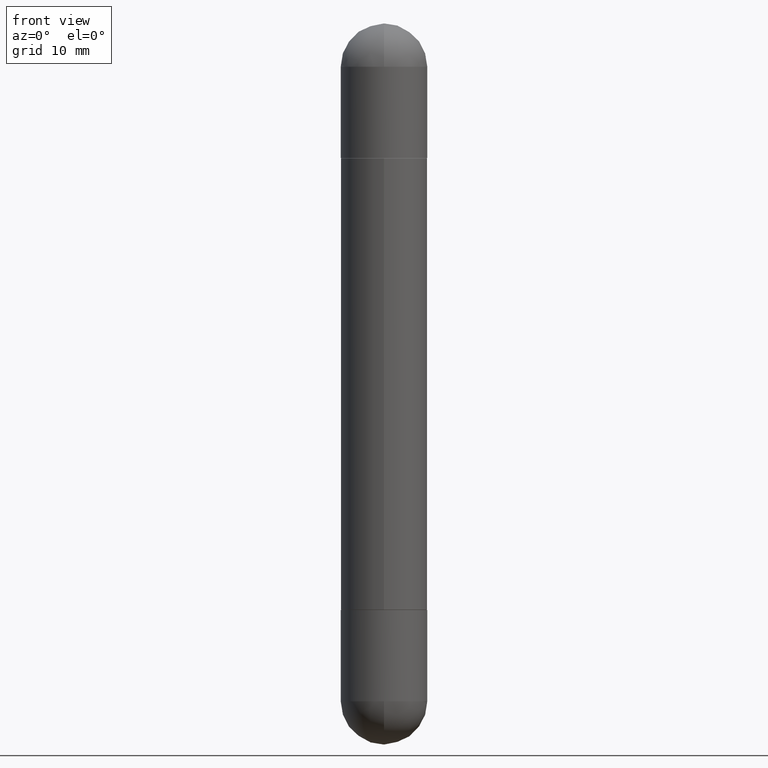
[diagram: clean part render]
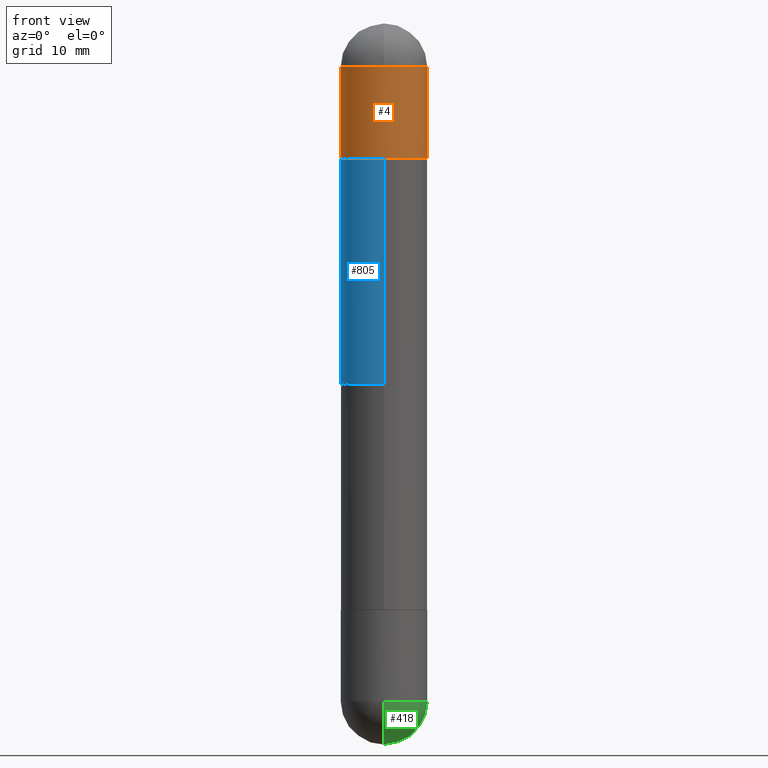
[diagram: same view with three faces highlighted in distinct colors, each labeled with its STEP entity id]
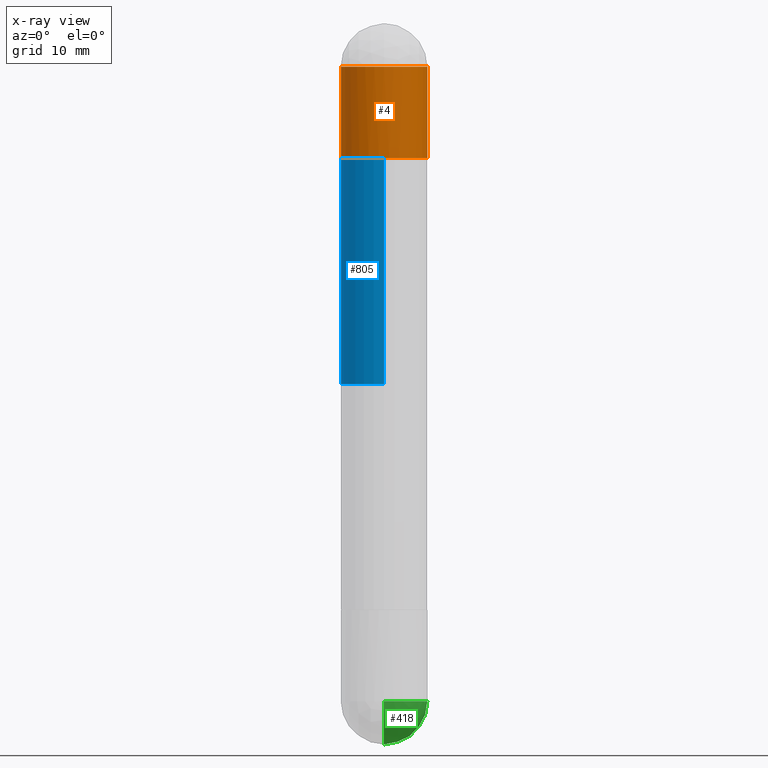
[diagram: x-ray of the same camera — body ghosted, the three highlighted faces saturated]
A machine part, front view with three faces highlighted in distinct colors.
The next image is the same camera in x-ray (body ghosted, the three faces saturated) — at least one of them is partly hidden behind the body in this view.
Their STEP definitions:

[orange] entity #4 — the highlighted cylindrical surface (partial cylindrical patch) has radius 4.4996 mm, axis along (-0, 0, -1).
#4 = ADVANCED_FACE ( 'NONE', ( #311 ), #259, .T. ) ;
#12 = DIRECTION ( 'NONE',  ( -2.445468806185136877E-29, 3.491481338843145188E-15, -1.000000000000000000 ) ) ;
#14 = CARTESIAN_POINT ( 'NONE',  ( 6.787765491887772680E-29, -9.691130178159974964E-15, -0.1771500000000000574 ) ) ;
#33 = CARTESIAN_POINT ( 'NONE',  ( 0.1771500000000000019, -9.622173421717819657E-15, -0.5512000000000001343 ) ) ;
#45 = CARTESIAN_POINT ( 'NONE',  ( -1.215337220305161228E-15, -0.1771500000000100772, -0.1771500000000006680 ) ) ;
#52 = AXIS2_PLACEMENT_3D ( 'NONE', #617, #676, #435 ) ;
#68 = DIRECTION ( 'NONE',  ( -2.445468806185136597E-29, 3.491481338843145583E-15, -1.000000000000000000 ) ) ;
#94 = ORIENTED_EDGE ( 'NONE', *, *, #273, .F. ) ;
#108 = ORIENTED_EDGE ( 'NONE', *, *, #496, .T. ) ;
#130 = EDGE_CURVE ( 'NONE', #489, #147, #139, .T. ) ;
#139 = CIRCLE ( 'NONE', #305, 0.1771500000000000019 ) ;
#147 = VERTEX_POINT ( 'NONE', #592 ) ;
#223 = LINE ( 'NONE', #391, #373 ) ;
#229 = EDGE_CURVE ( 'NONE', #797, #489, #269, .T. ) ;
#238 = VERTEX_POINT ( 'NONE', #533 ) ;
#247 = EDGE_CURVE ( 'NONE', #797, #238, #223, .T. ) ;
#259 = CYLINDRICAL_SURFACE ( 'NONE', #802, 0.1771500000000000019 ) ;
#266 = CARTESIAN_POINT ( 'NONE',  ( 6.787765491887772680E-29, -9.691130178159974964E-15, -0.1771500000000000574 ) ) ;
#269 = CIRCLE ( 'NONE', #414, 0.1771500000000000019 ) ;
#273 = EDGE_CURVE ( 'NONE', #147, #796, #590, .T. ) ;
#305 = AXIS2_PLACEMENT_3D ( 'NONE', #266, #458, #703 ) ;
#311 = FACE_OUTER_BOUND ( 'NONE', #702, .T. ) ;
#348 = CARTESIAN_POINT ( 'NONE',  ( -0.1771500000000000019, -7.822798660457609805E-15, -0.1771500000000000574 ) ) ;
#373 = VECTOR ( 'NONE', #12, 39.37007874015748143 ) ;
#391 = CARTESIAN_POINT ( 'NONE',  ( -0.1771500000000000019, 1.215337220305226901E-15, -2.952799999999999869 ) ) ;
#406 = DIRECTION ( 'NONE',  ( 2.445468806185136597E-29, -3.491481338843145583E-15, 1.000000000000000000 ) ) ;
#414 = AXIS2_PLACEMENT_3D ( 'NONE', #14, #406, #658 ) ;
#435 = DIRECTION ( 'NONE',  ( 1.000000000000000000, -6.982962677686266711E-15, 0.000000000000000000 ) ) ;
#449 = ORIENTED_EDGE ( 'NONE', *, *, #130, .F. ) ;
#457 = DIRECTION ( 'NONE',  ( -2.445468806185136877E-29, 3.491481338843145188E-15, -1.000000000000000000 ) ) ;
#458 = DIRECTION ( 'NONE',  ( 2.445468806185136597E-29, -3.491481338843145583E-15, 1.000000000000000000 ) ) ;
#489 = VERTEX_POINT ( 'NONE', #45 ) ;
#496 = EDGE_CURVE ( 'NONE', #238, #796, #674, .T. ) ;
#513 = CARTESIAN_POINT ( 'NONE',  ( 0.000000000000000000, 0.000000000000000000, -2.952799999999999869 ) ) ;
#533 = CARTESIAN_POINT ( 'NONE',  ( -0.1771500000000000019, -7.822798660457608227E-15, -0.5512000000000001343 ) ) ;
#553 = ORIENTED_EDGE ( 'NONE', *, *, #229, .F. ) ;
#590 = LINE ( 'NONE', #770, #712 ) ;
#592 = CARTESIAN_POINT ( 'NONE',  ( 0.1771500000000000019, -1.027516771911496009E-14, -0.1771500000000000574 ) ) ;
#617 = CARTESIAN_POINT ( 'NONE',  ( 5.873037884934223228E-29, -8.385141583365697263E-15, -0.5512000000000001343 ) ) ;
#632 = DIRECTION ( 'NONE',  ( 1.000000000000000000, -6.982962677686266711E-15, 0.000000000000000000 ) ) ;
#658 = DIRECTION ( 'NONE',  ( 1.000000000000000000, -6.982962677686272233E-15, 0.000000000000000000 ) ) ;
#674 = CIRCLE ( 'NONE', #52, 0.1771500000000000019 ) ;
#676 = DIRECTION ( 'NONE',  ( 2.445468806185136597E-29, -3.491481338843145583E-15, 1.000000000000000000 ) ) ;
#702 = EDGE_LOOP ( 'NONE', ( #553, #744, #108, #94, #449 ) ) ;
#703 = DIRECTION ( 'NONE',  ( 1.000000000000000000, -6.982962677686272233E-15, 0.000000000000000000 ) ) ;
#712 = VECTOR ( 'NONE', #457, 39.37007874015748143 ) ;
#744 = ORIENTED_EDGE ( 'NONE', *, *, #247, .T. ) ;
#770 = CARTESIAN_POINT ( 'NONE',  ( 0.1771500000000000019, -1.237031838352122197E-15, -2.952799999999999869 ) ) ;
#796 = VERTEX_POINT ( 'NONE', #33 ) ;
#797 = VERTEX_POINT ( 'NONE', #348 ) ;
#802 = AXIS2_PLACEMENT_3D ( 'NONE', #513, #68, #632 ) ;

[blue] entity #805 — the highlighted cylindrical surface (partial cylindrical patch) has radius 4.4996 mm, axis along (-0, 0, -1).
#2 = VERTEX_POINT ( 'NONE', #693 ) ;
#37 = AXIS2_PLACEMENT_3D ( 'NONE', #570, #444, #565 ) ;
#46 = EDGE_CURVE ( 'NONE', #2, #151, #169, .T. ) ;
#48 = VERTEX_POINT ( 'NONE', #326 ) ;
#66 = CIRCLE ( 'NONE', #402, 0.1771500000000003350 ) ;
#81 = CARTESIAN_POINT ( 'NONE',  ( 1.215337220305286460E-15, 0.1771499999999950337, -1.476399999999999935 ) ) ;
#83 = VECTOR ( 'NONE', #211, 39.37007874015748143 ) ;
#86 = DIRECTION ( 'NONE',  ( 2.445078332049067200E-29, -3.492040520030404815E-15, 1.000000000000000000 ) ) ;
#151 = VERTEX_POINT ( 'NONE', #81 ) ;
#160 = FACE_OUTER_BOUND ( 'NONE', #186, .T. ) ;
#169 = CIRCLE ( 'NONE', #37, 0.1771500000000001962 ) ;
#186 = EDGE_LOOP ( 'NONE', ( #433, #578, #540, #250 ) ) ;
#211 = DIRECTION ( 'NONE',  ( -2.445078332049067200E-29, 3.492040520030404421E-15, -1.000000000000000000 ) ) ;
#218 = CARTESIAN_POINT ( 'NONE',  ( 5.869655043916990285E-29, -8.382992472384988928E-15, -0.5522000000000002462 ) ) ;
#250 = ORIENTED_EDGE ( 'NONE', *, *, #810, .F. ) ;
#252 = CARTESIAN_POINT ( 'NONE',  ( -1.237031838352065793E-15, -0.1771500000000087172, -0.5522000000000008013 ) ) ;
#267 = CARTESIAN_POINT ( 'NONE',  ( 1.215337220305227887E-15, 0.1771500000000001962, -2.952799999999998981 ) ) ;
#321 = VECTOR ( 'NONE', #659, 39.37007874015748143 ) ;
#326 = CARTESIAN_POINT ( 'NONE',  ( 1.215337220305287643E-15, 0.1771499999999919250, -0.5521999999999995801 ) ) ;
#370 = EDGE_CURVE ( 'NONE', #48, #602, #66, .T. ) ;
#402 = AXIS2_PLACEMENT_3D ( 'NONE', #218, #86, #544 ) ;
#433 = ORIENTED_EDGE ( 'NONE', *, *, #370, .F. ) ;
#444 = DIRECTION ( 'NONE',  ( -0.000000000000000000, -0.000000000000000000, -1.000000000000000000 ) ) ;
#535 = AXIS2_PLACEMENT_3D ( 'NONE', #661, #538, #666 ) ;
#538 = DIRECTION ( 'NONE',  ( -2.445078332049067200E-29, 3.492040520030404815E-15, -1.000000000000000000 ) ) ;
#540 = ORIENTED_EDGE ( 'NONE', *, *, #46, .F. ) ;
#544 = DIRECTION ( 'NONE',  ( -6.982962677686265133E-15, -1.000000000000000000, -3.469747663417770691E-15 ) ) ;
#546 = CYLINDRICAL_SURFACE ( 'NONE', #535, 0.1771500000000001962 ) ;
#565 = DIRECTION ( 'NONE',  ( -1.000000000000000000, 0.000000000000000000, 0.000000000000000000 ) ) ;
#570 = CARTESIAN_POINT ( 'NONE',  ( 3.609913649437242172E-29, -5.155648623772889312E-15, -1.476399999999999935 ) ) ;
#577 = LINE ( 'NONE', #267, #83 ) ;
#578 = ORIENTED_EDGE ( 'NONE', *, *, #694, .T. ) ;
#602 = VERTEX_POINT ( 'NONE', #252 ) ;
#659 = DIRECTION ( 'NONE',  ( -2.445078332049067200E-29, 3.492040520030404421E-15, -1.000000000000000000 ) ) ;
#661 = CARTESIAN_POINT ( 'NONE',  ( 0.000000000000000000, 0.000000000000000000, -2.952799999999999869 ) ) ;
#666 = DIRECTION ( 'NONE',  ( -6.982962677686265133E-15, -1.000000000000000000, -3.084220145260243069E-15 ) ) ;
#693 = CARTESIAN_POINT ( 'NONE',  ( -1.237031838352075654E-15, -0.1771500000000053310, -1.476399999999999935 ) ) ;
#694 = EDGE_CURVE ( 'NONE', #48, #151, #577, .T. ) ;
#719 = CARTESIAN_POINT ( 'NONE',  ( -1.237031838352123183E-15, -0.1771500000000001962, -2.952800000000000313 ) ) ;
#778 = LINE ( 'NONE', #719, #321 ) ;
#805 = ADVANCED_FACE ( 'NONE', ( #160 ), #546, .T. ) ;
#810 = EDGE_CURVE ( 'NONE', #602, #2, #778, .T. ) ;

[green] entity #418 — the highlighted spherical surface has radius 4.4996 mm.
#5 = DIRECTION ( 'NONE',  ( -2.445468806185136597E-29, 3.491481338843145583E-15, 1.000000000000000000 ) ) ;
#56 = FACE_OUTER_BOUND ( 'NONE', #733, .T. ) ;
#126 = EDGE_CURVE ( 'NONE', #246, #233, #355, .T. ) ;
#138 = CARTESIAN_POINT ( 'NONE',  ( 6.456645713973887554E-29, -1.016531254630002526E-14, -2.775649999999999729 ) ) ;
#150 = CARTESIAN_POINT ( 'NONE',  ( 1.237031838352189250E-15, 0.1771499999999902042, -2.775650000000000173 ) ) ;
#170 = AXIS2_PLACEMENT_3D ( 'NONE', #525, #764, #595 ) ;
#205 = AXIS2_PLACEMENT_3D ( 'NONE', #138, #650, #696 ) ;
#231 = CARTESIAN_POINT ( 'NONE',  ( -1.258726456398951820E-15, -0.1771500000000100772, -2.775649999999999284 ) ) ;
#233 = VERTEX_POINT ( 'NONE', #150 ) ;
#246 = VERTEX_POINT ( 'NONE', #715 ) ;
#251 = EDGE_CURVE ( 'NONE', #767, #233, #548, .T. ) ;
#253 = SPHERICAL_SURFACE ( 'NONE', #505, 0.1771500000000002517 ) ;
#287 = EDGE_CURVE ( 'NONE', #767, #362, #521, .T. ) ;
#355 = CIRCLE ( 'NONE', #813, 0.1771500000000000019 ) ;
#362 = VERTEX_POINT ( 'NONE', #231 ) ;
#371 = ORIENTED_EDGE ( 'NONE', *, *, #287, .F. ) ;
#376 = CARTESIAN_POINT ( 'NONE',  ( 6.787765491887772680E-29, -9.691130178159974964E-15, -2.775649999999999729 ) ) ;
#381 = CARTESIAN_POINT ( 'NONE',  ( 6.456645713973887554E-29, -1.016531254630002526E-14, -2.775649999999999729 ) ) ;
#393 = CARTESIAN_POINT ( 'NONE',  ( 6.897435148395990892E-29, -1.077298115645264157E-14, -2.952799999999999869 ) ) ;
#417 = ORIENTED_EDGE ( 'NONE', *, *, #126, .F. ) ;
#418 = ADVANCED_FACE ( 'NONE', ( #56 ), #253, .T. ) ;
#429 = DIRECTION ( 'NONE',  ( -2.445468806185136597E-29, 3.491481338843145583E-15, 1.000000000000000000 ) ) ;
#482 = EDGE_CURVE ( 'NONE', #362, #246, #814, .T. ) ;
#505 = AXIS2_PLACEMENT_3D ( 'NONE', #381, #634, #747 ) ;
#517 = DIRECTION ( 'NONE',  ( 1.000000000000000000, -6.982962677686272233E-15, 0.000000000000000000 ) ) ;
#521 = CIRCLE ( 'NONE', #170, 0.1771500000000002517 ) ;
#525 = CARTESIAN_POINT ( 'NONE',  ( 6.456645713973887554E-29, -1.016531254630002526E-14, -2.775649999999999729 ) ) ;
#534 = AXIS2_PLACEMENT_3D ( 'NONE', #376, #429, #738 ) ;
#548 = CIRCLE ( 'NONE', #205, 0.1771500000000002517 ) ;
#595 = DIRECTION ( 'NONE',  ( -7.105427357601001070E-15, -1.000000000000000000, 0.000000000000000000 ) ) ;
#596 = ORIENTED_EDGE ( 'NONE', *, *, #251, .T. ) ;
#634 = DIRECTION ( 'NONE',  ( -1.000000000000000000, 6.982962677686265922E-15, -4.883557194083112340E-29 ) ) ;
#646 = CARTESIAN_POINT ( 'NONE',  ( 6.787765491887772680E-29, -9.691130178159974964E-15, -2.775649999999999729 ) ) ;
#650 = DIRECTION ( 'NONE',  ( 1.000000000000000000, -6.982962677686265922E-15, 4.883557194083112340E-29 ) ) ;
#696 = DIRECTION ( 'NONE',  ( 6.982962677686265922E-15, 1.000000000000000000, 0.000000000000000000 ) ) ;
#715 = CARTESIAN_POINT ( 'NONE',  ( 0.1771500000000000019, -1.027516771911495851E-14, -2.775649999999999729 ) ) ;
#733 = EDGE_LOOP ( 'NONE', ( #371, #596, #417, #737 ) ) ;
#737 = ORIENTED_EDGE ( 'NONE', *, *, #482, .F. ) ;
#738 = DIRECTION ( 'NONE',  ( 1.000000000000000000, -6.982962677686272233E-15, 0.000000000000000000 ) ) ;
#747 = DIRECTION ( 'NONE',  ( 6.982962677686265922E-15, 1.000000000000000000, -3.084220145260241885E-15 ) ) ;
#764 = DIRECTION ( 'NONE',  ( -1.000000000000000000, 7.105427357601001070E-15, -4.926315508542082329E-29 ) ) ;
#767 = VERTEX_POINT ( 'NONE', #393 ) ;
#813 = AXIS2_PLACEMENT_3D ( 'NONE', #646, #5, #517 ) ;
#814 = CIRCLE ( 'NONE', #534, 0.1771500000000000019 ) ;